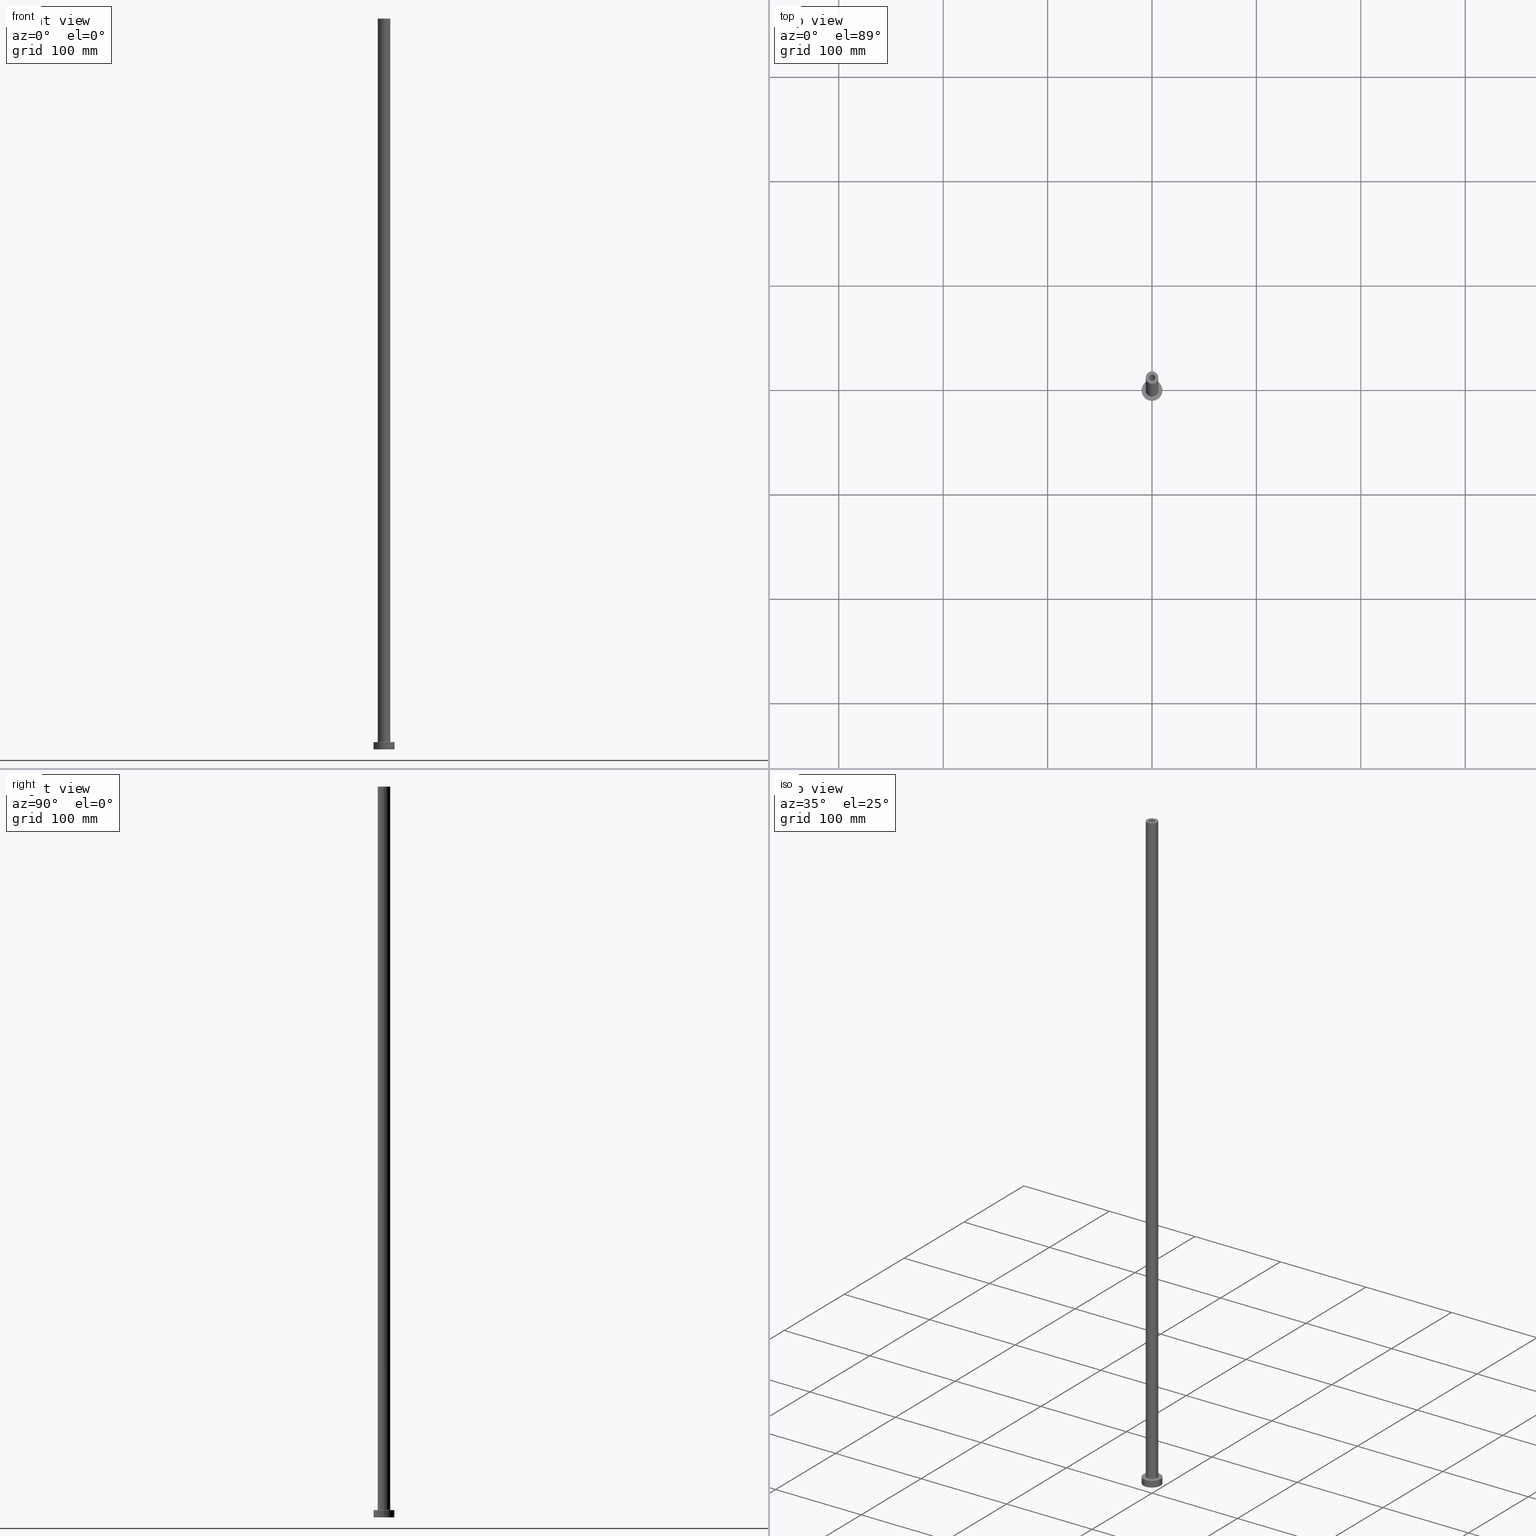
[diagram: canonical four-view strip — front | top / right | iso, engineering-drawing reading convention]
A machine part, canonical four-view strip (front | top / right | iso — engineering-drawing reading convention). The complete STEP part file that produces these views, byte-faithful:
ISO-10303-21;
HEADER;
FILE_DESCRIPTION (( 'STEP AP203' ),
    '1' );
FILE_NAME ('e46b.STEP',
    '2023-02-13T14:59:01',
    ( '' ),
    ( '' ),
    'SwSTEP 2.0',
    'SolidWorks 2019',
    '' );
FILE_SCHEMA (( 'CONFIG_CONTROL_DESIGN' ));
ENDSEC;

DATA;
#1 = CIRCLE ( 'NONE', #258, 3.000000000000000444 ) ;
#2 = DIRECTION ( 'NONE',  ( 0.000000000000000000, 0.000000000000000000, -1.000000000000000000 ) ) ;
#3 = MANIFOLD_SOLID_BREP ( 'Odebrat vysunut�m4', #417 ) ;
#4 = LINE ( 'NONE', #284, #77 ) ;
#5 = PERSON_AND_ORGANIZATION_ROLE ( 'design_supplier' ) ;
#6 = DIRECTION ( 'NONE',  ( -0.000000000000000000, -0.000000000000000000, -1.000000000000000000 ) ) ;
#7 = AXIS2_PLACEMENT_3D ( 'NONE', #261, #333, #441 ) ;
#8 = DIRECTION ( 'NONE',  ( 1.000000000000000000, 0.000000000000000000, 0.000000000000000000 ) ) ;
#9 = SHAPE_DEFINITION_REPRESENTATION ( #275, #315 ) ;
#10 = DIRECTION ( 'NONE',  ( -0.000000000000000000, -0.000000000000000000, -1.000000000000000000 ) ) ;
#11 = DIRECTION ( 'NONE',  ( -0.000000000000000000, -0.000000000000000000, -1.000000000000000000 ) ) ;
#12 = CYLINDRICAL_SURFACE ( 'NONE', #214, 6.000000000000000888 ) ;
#13 = APPROVAL ( #420, 'NEUR�EN�' ) ;
#14 = PRODUCT_DEFINITION ( 'NEZN�M�', '', #85, #193 ) ;
#15 = CARTESIAN_POINT ( 'NONE',  ( -3.150000000000000355, 0.000000000000000000, 0.000000000000000000 ) ) ;
#16 = DIRECTION ( 'NONE',  ( 0.000000000000000000, 0.000000000000000000, 1.000000000000000000 ) ) ;
#17 = EDGE_LOOP ( 'NONE', ( #151, #344 ) ) ;
#18 = AXIS2_PLACEMENT_3D ( 'NONE', #290, #42, #217 ) ;
#19 = DIRECTION ( 'NONE',  ( -1.000000000000000000, 0.000000000000000000, 0.000000000000000000 ) ) ;
#20 = ORIENTED_EDGE ( 'NONE', *, *, #47, .F. ) ;
#21 = AXIS2_PLACEMENT_3D ( 'NONE', #329, #216, #178 ) ;
#22 = DIRECTION ( 'NONE',  ( -0.000000000000000000, -0.000000000000000000, -1.000000000000000000 ) ) ;
#23 = CC_DESIGN_DATE_AND_TIME_ASSIGNMENT ( #392, #359, ( #454 ) ) ;
#24 = FACE_BOUND ( 'NONE', #211, .T. ) ;
#25 = ADVANCED_FACE ( 'NONE', ( #130 ), #163, .F. ) ;
#26 = PERSON_AND_ORGANIZATION ( #41, #266 ) ;
#27 = CIRCLE ( 'NONE', #431, 3.150000000000000355 ) ;
#28 = DIRECTION ( 'NONE',  ( 0.000000000000000000, 0.000000000000000000, 1.000000000000000000 ) ) ;
#29 = CIRCLE ( 'NONE', #328, 3.150000000000000355 ) ;
#30 = EDGE_CURVE ( 'NONE', #407, #35, #395, .T. ) ;
#31 = APPROVAL_ROLE ( '' ) ;
#32 = CARTESIAN_POINT ( 'NONE',  ( 3.000000000000000444, 3.673940397442060361E-16, 654.9999999999998863 ) ) ;
#33 = DIRECTION ( 'NONE',  ( 1.000000000000000000, 0.000000000000000000, -0.000000000000000000 ) ) ;
#34 = EDGE_CURVE ( 'NONE', #97, #308, #186, .T. ) ;
#35 = VERTEX_POINT ( 'NONE', #387 ) ;
#36 = ORIENTED_EDGE ( 'NONE', *, *, #115, .T. ) ;
#37 = AXIS2_PLACEMENT_3D ( 'NONE', #371, #121, #408 ) ;
#38 = DIRECTION ( 'NONE',  ( -1.000000000000000000, 0.000000000000000000, 0.000000000000000000 ) ) ;
#39 = APPROVAL_ROLE ( '' ) ;
#40 = DIRECTION ( 'NONE',  ( 1.000000000000000000, 0.000000000000000000, 0.000000000000000000 ) ) ;
#41 = PERSON ( 'NEUR�EN�', 'NEUR�EN�', 'NEUR�EN�', ('NEUR�EN�'), ('NEUR�EN�'), ('NEUR�EN�') ) ;
#42 = DIRECTION ( 'NONE',  ( 0.000000000000000000, 0.000000000000000000, 1.000000000000000000 ) ) ;
#43 = DIRECTION ( 'NONE',  ( -1.000000000000000000, 0.000000000000000000, 0.000000000000000000 ) ) ;
#44 = CARTESIAN_POINT ( 'NONE',  ( 0.000000000000000000, 0.000000000000000000, 7.000000000000000000 ) ) ;
#45 = LINE ( 'NONE', #184, #51 ) ;
#46 = ORIENTED_EDGE ( 'NONE', *, *, #241, .F. ) ;
#47 = EDGE_CURVE ( 'NONE', #372, #231, #27, .T. ) ;
#48 = ADVANCED_FACE ( 'NONE', ( #24, #133 ), #99, .T. ) ;
#49 = LINE ( 'NONE', #90, #234 ) ;
#50 = ORIENTED_EDGE ( 'NONE', *, *, #349, .F. ) ;
#51 = VECTOR ( 'NONE', #157, 1000.000000000000000 ) ;
#52 = DIRECTION ( 'NONE',  ( -1.000000000000000000, 1.224646799147351482E-16, 0.000000000000000000 ) ) ;
#53 = VERTEX_POINT ( 'NONE', #350 ) ;
#54 = CARTESIAN_POINT ( 'NONE',  ( -6.500000000000000888, 7.960204194457796463E-16, 6.999999999999975131 ) ) ;
#55 = EDGE_LOOP ( 'NONE', ( #20, #50 ) ) ;
#56 = VECTOR ( 'NONE', #71, 1000.000000000000000 ) ;
#57 = LINE ( 'NONE', #66, #453 ) ;
#58 = EDGE_LOOP ( 'NONE', ( #171, #135 ) ) ;
#59 = DIRECTION ( 'NONE',  ( -0.000000000000000000, -0.000000000000000000, -1.000000000000000000 ) ) ;
#60 = CARTESIAN_POINT ( 'NONE',  ( 0.000000000000000000, 0.000000000000000000, 654.9999999999998863 ) ) ;
#61 = APPROVAL_DATE_TIME ( #458, #13 ) ;
#62 = VERTEX_POINT ( 'NONE', #32 ) ;
#63 = PERSON_AND_ORGANIZATION ( #41, #266 ) ;
#64 = DIRECTION ( 'NONE',  ( 0.000000000000000000, 0.000000000000000000, 1.000000000000000000 ) ) ;
#65 = TOROIDAL_SURFACE ( 'NONE', #7, 6.500000000000000888, 0.5000000000000000000 ) ;
#66 = CARTESIAN_POINT ( 'NONE',  ( 3.000000000000000444, 3.673940397442060361E-16, 700.0000000000000000 ) ) ;
#67 = DIRECTION ( 'NONE',  ( 1.000000000000000000, 0.000000000000000000, 0.000000000000000000 ) ) ;
#68 = ORIENTED_EDGE ( 'NONE', *, *, #440, .T. ) ;
#69 = EDGE_CURVE ( 'NONE', #195, #262, #346, .T. ) ;
#70 = CALENDAR_DATE ( 2023, 13, 2 ) ;
#71 = DIRECTION ( 'NONE',  ( -0.000000000000000000, -0.000000000000000000, -1.000000000000000000 ) ) ;
#72 = CARTESIAN_POINT ( 'NONE',  ( 6.500000000000000888, 0.000000000000000000, 6.999999999999975131 ) ) ;
#73 = SECURITY_CLASSIFICATION_LEVEL ( 'unclassified' ) ;
#74 = CARTESIAN_POINT ( 'NONE',  ( 0.000000000000000000, 0.000000000000000000, 0.000000000000000000 ) ) ;
#75 = EDGE_CURVE ( 'NONE', #238, #449, #325, .T. ) ;
#76 = CARTESIAN_POINT ( 'NONE',  ( 0.000000000000000000, 0.000000000000000000, 663.9095454429503889 ) ) ;
#77 = VECTOR ( 'NONE', #2, 1000.000000000000000 ) ;
#78 = DIRECTION ( 'NONE',  ( 0.000000000000000000, 0.000000000000000000, -1.000000000000000000 ) ) ;
#79 = DIRECTION ( 'NONE',  ( 0.000000000000000000, 0.000000000000000000, -1.000000000000000000 ) ) ;
#80 = ORIENTED_EDGE ( 'NONE', *, *, #411, .F. ) ;
#81 = PLANE ( 'NONE',  #138 ) ;
#82 = CC_DESIGN_PERSON_AND_ORGANIZATION_ASSIGNMENT ( #105, #291, ( #85 ) ) ;
#83 = EDGE_LOOP ( 'NONE', ( #296, #301, #36, #369 ) ) ;
#84 = FACE_BOUND ( 'NONE', #17, .T. ) ;
#85 = PRODUCT_DEFINITION_FORMATION_WITH_SPECIFIED_SOURCE ( 'LIBOVOLN�', '', #236, .NOT_KNOWN. ) ;
#86 = ORIENTED_EDGE ( 'NONE', *, *, #257, .F. ) ;
#87 = EDGE_CURVE ( 'NONE', #53, #62, #1, .T. ) ;
#88 = DIRECTION ( 'NONE',  ( 1.000000000000000000, 0.000000000000000000, 0.000000000000000000 ) ) ;
#89 = ORIENTED_EDGE ( 'NONE', *, *, #191, .F. ) ;
#90 = CARTESIAN_POINT ( 'NONE',  ( -10.00000000000000000, 0.000000000000000000, 7.000000000000000000 ) ) ;
#91 = ORIENTED_EDGE ( 'NONE', *, *, #166, .T. ) ;
#92 = EDGE_CURVE ( 'NONE', #202, #409, #101, .T. ) ;
#93 = PERSON_AND_ORGANIZATION_ROLE ( 'design_owner' ) ;
#94 = DIRECTION ( 'NONE',  ( 1.000000000000000000, 0.000000000000000000, 0.000000000000000000 ) ) ;
#95 = AXIS2_PLACEMENT_3D ( 'NONE', #335, #16, #299 ) ;
#96 = APPROVAL_ROLE ( '' ) ;
#97 = VERTEX_POINT ( 'NONE', #72 ) ;
#98 = PERSON_AND_ORGANIZATION ( #41, #266 ) ;
#99 = PLANE ( 'NONE',  #226 ) ;
#100 = PLANE ( 'NONE',  #321 ) ;
#101 = CIRCLE ( 'NONE', #18, 10.00000000000000000 ) ;
#102 = ORIENTED_EDGE ( 'NONE', *, *, #428, .T. ) ;
#103 = AXIS2_PLACEMENT_3D ( 'NONE', #304, #127, #338 ) ;
#104 = ORIENTED_EDGE ( 'NONE', *, *, #30, .T. ) ;
#105 = PERSON_AND_ORGANIZATION ( #41, #266 ) ;
#106 = CARTESIAN_POINT ( 'NONE',  ( -6.000000000000000888, 0.000000000000000000, 700.0000000000000000 ) ) ;
#107 = PERSON_AND_ORGANIZATION ( #41, #266 ) ;
#108 = DIRECTION ( 'NONE',  ( 0.000000000000000000, 0.000000000000000000, 1.000000000000000000 ) ) ;
#109 = LOCAL_TIME ( 15, 59, 1.000000000000000000, #237 ) ;
#110 = AXIS2_PLACEMENT_3D ( 'NONE', #208, #307, #345 ) ;
#111 = CC_DESIGN_APPROVAL ( #391, ( #454 ) ) ;
#112 = DIRECTION ( 'NONE',  ( 1.000000000000000000, 0.000000000000000000, 0.000000000000000000 ) ) ;
#113 = CARTESIAN_POINT ( 'NONE',  ( 0.000000000000000000, 0.000000000000000000, 7.000000000000000000 ) ) ;
#114 = DIRECTION ( 'NONE',  ( 0.000000000000000000, 0.000000000000000000, 1.000000000000000000 ) ) ;
#115 = EDGE_CURVE ( 'NONE', #238, #35, #326, .T. ) ;
#116 =( GEOMETRIC_REPRESENTATION_CONTEXT ( 3 ) GLOBAL_UNCERTAINTY_ASSIGNED_CONTEXT ( ( #198 ) ) GLOBAL_UNIT_ASSIGNED_CONTEXT ( ( #243, #136, #161 ) ) REPRESENTATION_CONTEXT ( 'NONE', 'WORKASPACE' ) );
#117 = CARTESIAN_POINT ( 'NONE',  ( -6.500000000000000888, 7.960204194457796463E-16, 7.499999999999951150 ) ) ;
#118 = ORIENTED_EDGE ( 'NONE', *, *, #450, .F. ) ;
#119 = EDGE_CURVE ( 'NONE', #122, #298, #379, .T. ) ;
#120 = CARTESIAN_POINT ( 'NONE',  ( -3.150000000000000355, 0.000000000000000000, 654.9999999999998863 ) ) ;
#121 = DIRECTION ( 'NONE',  ( -0.000000000000000000, -0.000000000000000000, -1.000000000000000000 ) ) ;
#122 = VERTEX_POINT ( 'NONE', #213 ) ;
#123 = AXIS2_PLACEMENT_3D ( 'NONE', #209, #108, #292 ) ;
#124 = CARTESIAN_POINT ( 'NONE',  ( 6.000000000000000888, 7.347880794884120722E-16, 7.499999999999951150 ) ) ;
#125 = CIRCLE ( 'NONE', #132, 3.000000000000000444 ) ;
#126 = ORIENTED_EDGE ( 'NONE', *, *, #414, .T. ) ;
#127 = DIRECTION ( 'NONE',  ( 0.000000000000000000, 0.000000000000000000, 1.000000000000000000 ) ) ;
#128 = ORIENTED_EDGE ( 'NONE', *, *, #242, .T. ) ;
#129 = ADVANCED_FACE ( 'NONE', ( #142 ), #323, .F. ) ;
#130 = FACE_OUTER_BOUND ( 'NONE', #310, .T. ) ;
#131 = ORIENTED_EDGE ( 'NONE', *, *, #414, .F. ) ;
#132 = AXIS2_PLACEMENT_3D ( 'NONE', #324, #259, #8 ) ;
#133 = FACE_OUTER_BOUND ( 'NONE', #385, .T. ) ;
#134 = DIRECTION ( 'NONE',  ( 1.000000000000000000, 0.000000000000000000, 0.000000000000000000 ) ) ;
#135 = ORIENTED_EDGE ( 'NONE', *, *, #69, .F. ) ;
#136 =( NAMED_UNIT ( * ) PLANE_ANGLE_UNIT ( ) SI_UNIT ( $, .RADIAN. ) );
#137 = EDGE_LOOP ( 'NONE', ( #390, #339, #270, #126 ) ) ;
#138 = AXIS2_PLACEMENT_3D ( 'NONE', #415, #297, #295 ) ;
#139 = CC_DESIGN_SECURITY_CLASSIFICATION ( #454, ( #85 ) ) ;
#140 = CALENDAR_DATE ( 2023, 13, 2 ) ;
#141 = CARTESIAN_POINT ( 'NONE',  ( 0.000000000000000000, 0.000000000000000000, 654.9999999999998863 ) ) ;
#142 = FACE_OUTER_BOUND ( 'NONE', #461, .T. ) ;
#143 = COORDINATED_UNIVERSAL_TIME_OFFSET ( 1, 0, .AHEAD. ) ;
#144 = CARTESIAN_POINT ( 'NONE',  ( 0.000000000000000000, 0.000000000000000000, 0.000000000000000000 ) ) ;
#145 = CIRCLE ( 'NONE', #410, 3.150000000000000355 ) ;
#146 = CARTESIAN_POINT ( 'NONE',  ( 0.000000000000000000, 0.000000000000000000, 7.000000000000000000 ) ) ;
#147 = CYLINDRICAL_SURFACE ( 'NONE', #357, 3.000000000000000444 ) ;
#148 = FACE_OUTER_BOUND ( 'NONE', #83, .T. ) ;
#149 = AXIS2_PLACEMENT_3D ( 'NONE', #192, #79, #19 ) ;
#150 = CYLINDRICAL_SURFACE ( 'NONE', #149, 3.150000000000000355 ) ;
#151 = ORIENTED_EDGE ( 'NONE', *, *, #87, .T. ) ;
#152 = CARTESIAN_POINT ( 'NONE',  ( 3.150000000000000355, 3.857637417314163182E-16, 0.000000000000000000 ) ) ;
#153 = EDGE_LOOP ( 'NONE', ( #89, #68, #104, #194 ) ) ;
#154 = ADVANCED_FACE ( 'NONE', ( #429 ), #147, .F. ) ;
#155 = CARTESIAN_POINT ( 'NONE',  ( 0.000000000000000000, 0.000000000000000000, 7.499999999999951150 ) ) ;
#156 = EDGE_LOOP ( 'NONE', ( #451, #355, #452, #118 ) ) ;
#157 = DIRECTION ( 'NONE',  ( -0.000000000000000000, -0.000000000000000000, -1.000000000000000000 ) ) ;
#158 = AXIS2_PLACEMENT_3D ( 'NONE', #117, #443, #52 ) ;
#159 = DIRECTION ( 'NONE',  ( 1.000000000000000000, 0.000000000000000000, 0.000000000000000000 ) ) ;
#160 = EDGE_LOOP ( 'NONE', ( #305, #416, #162, #444 ) ) ;
#161 =( NAMED_UNIT ( * ) SI_UNIT ( $, .STERADIAN. ) SOLID_ANGLE_UNIT ( ) );
#162 = ORIENTED_EDGE ( 'NONE', *, *, #34, .F. ) ;
#163 = TOROIDAL_SURFACE ( 'NONE', #401, 6.500000000000000888, 0.5000000000000000000 ) ;
#164 = DIRECTION ( 'NONE',  ( 0.000000000000000000, 0.000000000000000000, 1.000000000000000000 ) ) ;
#165 = DIRECTION ( 'NONE',  ( -0.000000000000000000, -0.000000000000000000, -1.000000000000000000 ) ) ;
#166 = EDGE_CURVE ( 'NONE', #262, #195, #125, .T. ) ;
#167 = DIRECTION ( 'NONE',  ( 0.000000000000000000, 0.000000000000000000, -1.000000000000000000 ) ) ;
#168 = CARTESIAN_POINT ( 'NONE',  ( 0.000000000000000000, 0.000000000000000000, 700.0000000000000000 ) ) ;
#169 = ADVANCED_FACE ( 'NONE', ( #182 ), #175, .T. ) ;
#170 = ADVANCED_FACE ( 'NONE', ( #430 ), #218, .F. ) ;
#171 = ORIENTED_EDGE ( 'NONE', *, *, #166, .F. ) ;
#172 = ORIENTED_EDGE ( 'NONE', *, *, #87, .F. ) ;
#173 = AXIS2_PLACEMENT_3D ( 'NONE', #113, #402, #40 ) ;
#174 = AXIS2_PLACEMENT_3D ( 'NONE', #264, #269, #412 ) ;
#175 = CYLINDRICAL_SURFACE ( 'NONE', #397, 10.00000000000000000 ) ;
#176 = ADVANCED_FACE ( 'NONE', ( #367 ), #433, .T. ) ;
#177 = APPROVAL_DATE_TIME ( #212, #391 ) ;
#178 = DIRECTION ( 'NONE',  ( -1.000000000000000000, 0.000000000000000000, 0.000000000000000000 ) ) ;
#179 = CARTESIAN_POINT ( 'NONE',  ( 0.000000000000000000, 0.000000000000000000, 654.9999999999998863 ) ) ;
#180 = CIRCLE ( 'NONE', #312, 6.000000000000000888 ) ;
#181 = LOCAL_TIME ( 15, 59, 1.000000000000000000, #143 ) ;
#182 = FACE_OUTER_BOUND ( 'NONE', #383, .T. ) ;
#183 = DIRECTION ( 'NONE',  ( -0.000000000000000000, -0.000000000000000000, -1.000000000000000000 ) ) ;
#184 = CARTESIAN_POINT ( 'NONE',  ( 10.00000000000000000, 1.224646799147353256E-15, 7.000000000000000000 ) ) ;
#185 = ORIENTED_EDGE ( 'NONE', *, *, #69, .T. ) ;
#186 = CIRCLE ( 'NONE', #300, 6.500000000000000888 ) ;
#187 = AXIS2_PLACEMENT_3D ( 'NONE', #141, #286, #396 ) ;
#188 = EDGE_LOOP ( 'NONE', ( #91, #102, #172, #268 ) ) ;
#189 = EDGE_CURVE ( 'NONE', #262, #53, #4, .T. ) ;
#190 = LINE ( 'NONE', #404, #403 ) ;
#191 = EDGE_CURVE ( 'NONE', #449, #238, #180, .T. ) ;
#192 = CARTESIAN_POINT ( 'NONE',  ( 0.000000000000000000, 0.000000000000000000, 663.9095454429503889 ) ) ;
#193 = DESIGN_CONTEXT ( 'detailed design', #260, 'design' ) ;
#194 = ORIENTED_EDGE ( 'NONE', *, *, #115, .F. ) ;
#195 = VERTEX_POINT ( 'NONE', #256 ) ;
#196 = LOCAL_TIME ( 15, 59, 1.000000000000000000, #361 ) ;
#197 = DIRECTION ( 'NONE',  ( 0.000000000000000000, 0.000000000000000000, -1.000000000000000000 ) ) ;
#198 = UNCERTAINTY_MEASURE_WITH_UNIT (LENGTH_MEASURE( 1.000000000000000082E-05 ), #243, 'distance_accuracy_value', 'NONE');
#199 = DIRECTION ( 'NONE',  ( 1.000000000000000000, 0.000000000000000000, 0.000000000000000000 ) ) ;
#200 = CC_DESIGN_DATE_AND_TIME_ASSIGNMENT ( #455, #276, ( #14 ) ) ;
#201 = COORDINATED_UNIVERSAL_TIME_OFFSET ( 1, 0, .AHEAD. ) ;
#202 = VERTEX_POINT ( 'NONE', #320 ) ;
#203 = AXIS2_PLACEMENT_3D ( 'NONE', #168, #279, #67 ) ;
#204 = EDGE_CURVE ( 'NONE', #62, #53, #245, .T. ) ;
#205 = CARTESIAN_POINT ( 'NONE',  ( -3.150000000000000355, 0.000000000000000000, 663.9095454429503889 ) ) ;
#206 = DIRECTION ( 'NONE',  ( 1.000000000000000000, 0.000000000000000000, -0.000000000000000000 ) ) ;
#207 = CIRCLE ( 'NONE', #282, 10.00000000000000000 ) ;
#208 = CARTESIAN_POINT ( 'NONE',  ( 0.000000000000000000, 0.000000000000000000, 0.000000000000000000 ) ) ;
#209 = CARTESIAN_POINT ( 'NONE',  ( 0.000000000000000000, 0.000000000000000000, 700.0000000000000000 ) ) ;
#210 = CALENDAR_DATE ( 2023, 13, 2 ) ;
#211 = EDGE_LOOP ( 'NONE', ( #222, #427 ) ) ;
#212 = DATE_AND_TIME ( #70, #381 ) ;
#213 = CARTESIAN_POINT ( 'NONE',  ( 10.00000000000000000, 1.224646799147353256E-15, 7.000000000000000000 ) ) ;
#214 = AXIS2_PLACEMENT_3D ( 'NONE', #406, #445, #293 ) ;
#215 = PERSON_AND_ORGANIZATION ( #41, #266 ) ;
#216 = DIRECTION ( 'NONE',  ( 0.000000000000000000, 0.000000000000000000, -1.000000000000000000 ) ) ;
#217 = DIRECTION ( 'NONE',  ( 1.000000000000000000, 0.000000000000000000, 0.000000000000000000 ) ) ;
#218 = CYLINDRICAL_SURFACE ( 'NONE', #348, 3.150000000000000355 ) ;
#219 = CC_DESIGN_PERSON_AND_ORGANIZATION_ASSIGNMENT ( #215, #5, ( #85 ) ) ;
#220 = DIRECTION ( 'NONE',  ( 1.000000000000000000, 0.000000000000000000, 0.000000000000000000 ) ) ;
#221 = DIRECTION ( 'NONE',  ( 0.000000000000000000, 0.000000000000000000, -1.000000000000000000 ) ) ;
#222 = ORIENTED_EDGE ( 'NONE', *, *, #34, .T. ) ;
#223 = APPLICATION_CONTEXT ( 'configuration controlled 3d designs of mechanical parts and assemblies' ) ;
#224 = CYLINDRICAL_SURFACE ( 'NONE', #37, 6.000000000000000888 ) ;
#225 = EDGE_LOOP ( 'NONE', ( #413, #353 ) ) ;
#226 = AXIS2_PLACEMENT_3D ( 'NONE', #277, #64, #206 ) ;
#227 = LOCAL_TIME ( 15, 59, 1.000000000000000000, #201 ) ;
#228 = FACE_OUTER_BOUND ( 'NONE', #55, .T. ) ;
#229 = ORIENTED_EDGE ( 'NONE', *, *, #119, .T. ) ;
#230 = CARTESIAN_POINT ( 'NONE',  ( 0.000000000000000000, 0.000000000000000000, 7.000000000000000000 ) ) ;
#231 = VERTEX_POINT ( 'NONE', #283 ) ;
#232 = FACE_OUTER_BOUND ( 'NONE', #225, .T. ) ;
#233 = APPLICATION_PROTOCOL_DEFINITION ( 'international standard', 'config_control_design', 1994, #260 ) ;
#234 = VECTOR ( 'NONE', #183, 1000.000000000000000 ) ;
#235 = ORIENTED_EDGE ( 'NONE', *, *, #287, .T. ) ;
#236 = PRODUCT ( 'e46b', 'e46b', '', ( #239 ) ) ;
#237 = COORDINATED_UNIVERSAL_TIME_OFFSET ( 1, 0, .AHEAD. ) ;
#238 = VERTEX_POINT ( 'NONE', #106 ) ;
#239 = MECHANICAL_CONTEXT ( 'NONE', #223, 'mechanical' ) ;
#240 = DIRECTION ( 'NONE',  ( 1.000000000000000000, 0.000000000000000000, 0.000000000000000000 ) ) ;
#241 = EDGE_CURVE ( 'NONE', #298, #122, #207, .T. ) ;
#242 = EDGE_CURVE ( 'NONE', #409, #202, #366, .T. ) ;
#243 =( LENGTH_UNIT ( ) NAMED_UNIT ( * ) SI_UNIT ( .MILLI., .METRE. ) );
#244 = DIRECTION ( 'NONE',  ( 0.000000000000000000, 0.000000000000000000, 1.000000000000000000 ) ) ;
#245 = CIRCLE ( 'NONE', #187, 3.000000000000000444 ) ;
#246 = APPROVAL_PERSON_ORGANIZATION ( #98, #306, #31 ) ;
#247 = DIRECTION ( 'NONE',  ( -0.000000000000000000, -0.000000000000000000, -1.000000000000000000 ) ) ;
#248 = ORIENTED_EDGE ( 'NONE', *, *, #354, .T. ) ;
#249 = DATE_AND_TIME ( #140, #181 ) ;
#250 = CARTESIAN_POINT ( 'NONE',  ( 0.000000000000000000, 0.000000000000000000, 7.000000000000000000 ) ) ;
#251 = APPROVAL_DATE_TIME ( #249, #306 ) ;
#252 = DIRECTION ( 'NONE',  ( -1.000000000000000000, 0.000000000000000000, 0.000000000000000000 ) ) ;
#253 = VECTOR ( 'NONE', #22, 1000.000000000000000 ) ;
#254 = APPROVAL_PERSON_ORGANIZATION ( #107, #391, #39 ) ;
#255 = DIRECTION ( 'NONE',  ( 0.000000000000000000, 0.000000000000000000, 1.000000000000000000 ) ) ;
#256 = CARTESIAN_POINT ( 'NONE',  ( 3.000000000000000444, 3.673940397442060361E-16, 700.0000000000000000 ) ) ;
#257 = EDGE_CURVE ( 'NONE', #336, #314, #145, .T. ) ;
#258 = AXIS2_PLACEMENT_3D ( 'NONE', #179, #364, #400 ) ;
#259 = DIRECTION ( 'NONE',  ( 0.000000000000000000, 0.000000000000000000, 1.000000000000000000 ) ) ;
#260 = APPLICATION_CONTEXT ( 'configuration controlled 3d designs of mechanical parts and assemblies' ) ;
#261 = CARTESIAN_POINT ( 'NONE',  ( 0.000000000000000000, 0.000000000000000000, 7.499999999999951150 ) ) ;
#262 = VERTEX_POINT ( 'NONE', #376 ) ;
#263 = FACE_OUTER_BOUND ( 'NONE', #153, .T. ) ;
#264 = CARTESIAN_POINT ( 'NONE',  ( 6.500000000000000888, 0.000000000000000000, 7.499999999999951150 ) ) ;
#265 = ORIENTED_EDGE ( 'NONE', *, *, #30, .F. ) ;
#266 = ORGANIZATION ( 'NEUR�EN�', 'NEUR�EN�', '' ) ;
#267 = CARTESIAN_POINT ( 'NONE',  ( -10.00000000000000000, 0.000000000000000000, 0.000000000000000000 ) ) ;
#268 = ORIENTED_EDGE ( 'NONE', *, *, #189, .F. ) ;
#269 = DIRECTION ( 'NONE',  ( 0.000000000000000000, -1.000000000000000000, 0.000000000000000000 ) ) ;
#270 = ORIENTED_EDGE ( 'NONE', *, *, #450, .T. ) ;
#271 = PERSON_AND_ORGANIZATION ( #41, #266 ) ;
#272 = CARTESIAN_POINT ( 'NONE',  ( 0.000000000000000000, 0.000000000000000000, 7.499999999999951150 ) ) ;
#273 = AXIS2_PLACEMENT_3D ( 'NONE', #230, #247, #159 ) ;
#274 = ORIENTED_EDGE ( 'NONE', *, *, #75, .T. ) ;
#275 = PRODUCT_DEFINITION_SHAPE ( 'NONE', 'NONE',  #14 ) ;
#276 = DATE_TIME_ROLE ( 'creation_date' ) ;
#277 = CARTESIAN_POINT ( 'NONE',  ( 0.000000000000000000, 0.000000000000000000, 7.000000000000000000 ) ) ;
#278 = FACE_BOUND ( 'NONE', #58, .T. ) ;
#279 = DIRECTION ( 'NONE',  ( 0.000000000000000000, 0.000000000000000000, 1.000000000000000000 ) ) ;
#280 = EDGE_CURVE ( 'NONE', #35, #407, #426, .T. ) ;
#281 = EDGE_LOOP ( 'NONE', ( #274, #424 ) ) ;
#282 = AXIS2_PLACEMENT_3D ( 'NONE', #250, #394, #112 ) ;
#283 = CARTESIAN_POINT ( 'NONE',  ( 3.150000000000000355, 3.857637417314163182E-16, 654.9999999999998863 ) ) ;
#284 = CARTESIAN_POINT ( 'NONE',  ( -3.000000000000000444, 0.000000000000000000, 700.0000000000000000 ) ) ;
#285 = AXIS2_PLACEMENT_3D ( 'NONE', #272, #28, #199 ) ;
#286 = DIRECTION ( 'NONE',  ( 0.000000000000000000, 0.000000000000000000, 1.000000000000000000 ) ) ;
#287 = EDGE_CURVE ( 'NONE', #407, #97, #380, .T. ) ;
#288 = CIRCLE ( 'NONE', #273, 6.500000000000000888 ) ;
#289 = PERSON_AND_ORGANIZATION_ROLE ( 'classification_officer' ) ;
#290 = CARTESIAN_POINT ( 'NONE',  ( 0.000000000000000000, 0.000000000000000000, 0.000000000000000000 ) ) ;
#291 = PERSON_AND_ORGANIZATION_ROLE ( 'creator' ) ;
#292 = DIRECTION ( 'NONE',  ( 1.000000000000000000, 0.000000000000000000, 0.000000000000000000 ) ) ;
#293 = DIRECTION ( 'NONE',  ( -1.000000000000000000, 0.000000000000000000, 0.000000000000000000 ) ) ;
#294 = AXIS2_PLACEMENT_3D ( 'NONE', #155, #448, #88 ) ;
#295 = DIRECTION ( 'NONE',  ( 1.000000000000000000, 0.000000000000000000, -0.000000000000000000 ) ) ;
#296 = ORIENTED_EDGE ( 'NONE', *, *, #440, .F. ) ;
#297 = DIRECTION ( 'NONE',  ( 0.000000000000000000, 0.000000000000000000, 1.000000000000000000 ) ) ;
#298 = VERTEX_POINT ( 'NONE', #330 ) ;
#299 = DIRECTION ( 'NONE',  ( 1.000000000000000000, 0.000000000000000000, -0.000000000000000000 ) ) ;
#300 = AXIS2_PLACEMENT_3D ( 'NONE', #459, #165, #456 ) ;
#301 = ORIENTED_EDGE ( 'NONE', *, *, #75, .F. ) ;
#302 = AXIS2_PLACEMENT_3D ( 'NONE', #44, #6, #435 ) ;
#303 = CC_DESIGN_APPROVAL ( #306, ( #85 ) ) ;
#304 = CARTESIAN_POINT ( 'NONE',  ( 0.000000000000000000, 0.000000000000000000, 654.9999999999998863 ) ) ;
#305 = ORIENTED_EDGE ( 'NONE', *, *, #280, .F. ) ;
#306 = APPROVAL ( #347, 'NEUR�EN�' ) ;
#307 = DIRECTION ( 'NONE',  ( 0.000000000000000000, 0.000000000000000000, 1.000000000000000000 ) ) ;
#308 = VERTEX_POINT ( 'NONE', #54 ) ;
#309 = LINE ( 'NONE', #316, #253 ) ;
#310 = EDGE_LOOP ( 'NONE', ( #317, #265, #235, #80 ) ) ;
#311 = CALENDAR_DATE ( 2023, 13, 2 ) ;
#312 = AXIS2_PLACEMENT_3D ( 'NONE', #437, #114, #220 ) ;
#313 = VECTOR ( 'NONE', #197, 1000.000000000000000 ) ;
#314 = VERTEX_POINT ( 'NONE', #15 ) ;
#315 = ADVANCED_BREP_SHAPE_REPRESENTATION ( 'e46b', ( #3, #110 ), #116 ) ;
#316 = CARTESIAN_POINT ( 'NONE',  ( 6.000000000000000888, 7.347880794884120722E-16, 700.0000000000000000 ) ) ;
#317 = ORIENTED_EDGE ( 'NONE', *, *, #374, .F. ) ;
#318 = FACE_OUTER_BOUND ( 'NONE', #281, .T. ) ;
#319 = EDGE_LOOP ( 'NONE', ( #131, #86 ) ) ;
#320 = CARTESIAN_POINT ( 'NONE',  ( 10.00000000000000000, 1.224646799147353256E-15, 0.000000000000000000 ) ) ;
#321 = AXIS2_PLACEMENT_3D ( 'NONE', #343, #164, #33 ) ;
#322 = PERSON_AND_ORGANIZATION ( #41, #266 ) ;
#323 = CYLINDRICAL_SURFACE ( 'NONE', #21, 3.000000000000000444 ) ;
#324 = CARTESIAN_POINT ( 'NONE',  ( 0.000000000000000000, 0.000000000000000000, 700.0000000000000000 ) ) ;
#325 = CIRCLE ( 'NONE', #123, 6.000000000000000888 ) ;
#326 = LINE ( 'NONE', #360, #56 ) ;
#327 = ADVANCED_FACE ( 'NONE', ( #368 ), #150, .F. ) ;
#328 = AXIS2_PLACEMENT_3D ( 'NONE', #460, #59, #134 ) ;
#329 = CARTESIAN_POINT ( 'NONE',  ( 0.000000000000000000, 0.000000000000000000, 700.0000000000000000 ) ) ;
#330 = CARTESIAN_POINT ( 'NONE',  ( -10.00000000000000000, 0.000000000000000000, 7.000000000000000000 ) ) ;
#331 = FACE_BOUND ( 'NONE', #319, .T. ) ;
#332 = ORIENTED_EDGE ( 'NONE', *, *, #354, .F. ) ;
#333 = DIRECTION ( 'NONE',  ( 0.000000000000000000, 0.000000000000000000, 1.000000000000000000 ) ) ;
#334 = EDGE_LOOP ( 'NONE', ( #375, #46, #248, #128 ) ) ;
#335 = CARTESIAN_POINT ( 'NONE',  ( 0.000000000000000000, 0.000000000000000000, 654.9999999999998863 ) ) ;
#336 = VERTEX_POINT ( 'NONE', #152 ) ;
#337 = EDGE_CURVE ( 'NONE', #122, #202, #45, .T. ) ;
#338 = DIRECTION ( 'NONE',  ( 1.000000000000000000, 0.000000000000000000, 0.000000000000000000 ) ) ;
#339 = ORIENTED_EDGE ( 'NONE', *, *, #349, .T. ) ;
#340 = CIRCLE ( 'NONE', #158, 0.5000000000000004441 ) ;
#341 = ORIENTED_EDGE ( 'NONE', *, *, #428, .F. ) ;
#342 = CC_DESIGN_PERSON_AND_ORGANIZATION_ASSIGNMENT ( #271, #93, ( #236 ) ) ;
#343 = CARTESIAN_POINT ( 'NONE',  ( 0.000000000000000000, 0.000000000000000000, 700.0000000000000000 ) ) ;
#344 = ORIENTED_EDGE ( 'NONE', *, *, #204, .T. ) ;
#345 = DIRECTION ( 'NONE',  ( 1.000000000000000000, 0.000000000000000000, 0.000000000000000000 ) ) ;
#346 = CIRCLE ( 'NONE', #203, 3.000000000000000444 ) ;
#347 = APPROVAL_STATUS ( 'not_yet_approved' ) ;
#348 = AXIS2_PLACEMENT_3D ( 'NONE', #76, #78, #252 ) ;
#349 = EDGE_CURVE ( 'NONE', #231, #372, #447, .T. ) ;
#350 = CARTESIAN_POINT ( 'NONE',  ( -3.000000000000000444, 0.000000000000000000, 654.9999999999998863 ) ) ;
#351 = ADVANCED_FACE ( 'NONE', ( #331, #232 ), #81, .F. ) ;
#352 = APPLICATION_PROTOCOL_DEFINITION ( 'international standard', 'config_control_design', 1994, #223 ) ;
#353 = ORIENTED_EDGE ( 'NONE', *, *, #92, .F. ) ;
#354 = EDGE_CURVE ( 'NONE', #298, #409, #49, .T. ) ;
#355 = ORIENTED_EDGE ( 'NONE', *, *, #388, .T. ) ;
#356 = CARTESIAN_POINT ( 'NONE',  ( 0.000000000000000000, 0.000000000000000000, 700.0000000000000000 ) ) ;
#357 = AXIS2_PLACEMENT_3D ( 'NONE', #356, #362, #38 ) ;
#358 = CC_DESIGN_PERSON_AND_ORGANIZATION_ASSIGNMENT ( #322, #289, ( #454 ) ) ;
#359 = DATE_TIME_ROLE ( 'classification_date' ) ;
#360 = CARTESIAN_POINT ( 'NONE',  ( -6.000000000000000888, 0.000000000000000000, 700.0000000000000000 ) ) ;
#361 = COORDINATED_UNIVERSAL_TIME_OFFSET ( 1, 0, .AHEAD. ) ;
#362 = DIRECTION ( 'NONE',  ( 0.000000000000000000, 0.000000000000000000, -1.000000000000000000 ) ) ;
#363 = ADVANCED_FACE ( 'NONE', ( #148 ), #12, .T. ) ;
#364 = DIRECTION ( 'NONE',  ( 0.000000000000000000, 0.000000000000000000, 1.000000000000000000 ) ) ;
#365 = PRODUCT_RELATED_PRODUCT_CATEGORY ( 'detail', '', ( #236 ) ) ;
#366 = CIRCLE ( 'NONE', #419, 10.00000000000000000 ) ;
#367 = FACE_OUTER_BOUND ( 'NONE', #334, .T. ) ;
#368 = FACE_OUTER_BOUND ( 'NONE', #156, .T. ) ;
#369 = ORIENTED_EDGE ( 'NONE', *, *, #280, .T. ) ;
#370 = ADVANCED_FACE ( 'NONE', ( #438 ), #65, .F. ) ;
#371 = CARTESIAN_POINT ( 'NONE',  ( 0.000000000000000000, 0.000000000000000000, 700.0000000000000000 ) ) ;
#372 = VERTEX_POINT ( 'NONE', #120 ) ;
#373 = PLANE ( 'NONE',  #95 ) ;
#374 = EDGE_CURVE ( 'NONE', #35, #308, #340, .T. ) ;
#375 = ORIENTED_EDGE ( 'NONE', *, *, #337, .F. ) ;
#376 = CARTESIAN_POINT ( 'NONE',  ( -3.000000000000000444, 0.000000000000000000, 700.0000000000000000 ) ) ;
#377 = ORIENTED_EDGE ( 'NONE', *, *, #204, .F. ) ;
#378 = DIRECTION ( 'NONE',  ( 1.000000000000000000, 0.000000000000000000, 0.000000000000000000 ) ) ;
#379 = CIRCLE ( 'NONE', #173, 10.00000000000000000 ) ;
#380 = CIRCLE ( 'NONE', #174, 0.5000000000000004441 ) ;
#381 = LOCAL_TIME ( 15, 59, 1.000000000000000000, #434 ) ;
#382 = CARTESIAN_POINT ( 'NONE',  ( 6.000000000000000888, 7.347880794884120722E-16, 700.0000000000000000 ) ) ;
#383 = EDGE_LOOP ( 'NONE', ( #446, #405, #423, #332 ) ) ;
#384 = CALENDAR_DATE ( 2023, 13, 2 ) ;
#385 = EDGE_LOOP ( 'NONE', ( #421, #229 ) ) ;
#386 = DIRECTION ( 'NONE',  ( 0.000000000000000000, 0.000000000000000000, 1.000000000000000000 ) ) ;
#387 = CARTESIAN_POINT ( 'NONE',  ( -6.000000000000000888, 0.000000000000000000, 7.499999999999951150 ) ) ;
#388 = EDGE_CURVE ( 'NONE', #231, #336, #190, .T. ) ;
#389 = CC_DESIGN_PERSON_AND_ORGANIZATION_ASSIGNMENT ( #63, #422, ( #14 ) ) ;
#390 = ORIENTED_EDGE ( 'NONE', *, *, #388, .F. ) ;
#391 = APPROVAL ( #436, 'NEUR�EN�' ) ;
#392 = DATE_AND_TIME ( #210, #196 ) ;
#393 = ADVANCED_FACE ( 'NONE', ( #263 ), #224, .T. ) ;
#394 = DIRECTION ( 'NONE',  ( 0.000000000000000000, 0.000000000000000000, 1.000000000000000000 ) ) ;
#395 = CIRCLE ( 'NONE', #285, 6.000000000000000888 ) ;
#396 = DIRECTION ( 'NONE',  ( 1.000000000000000000, 0.000000000000000000, 0.000000000000000000 ) ) ;
#397 = AXIS2_PLACEMENT_3D ( 'NONE', #146, #10, #43 ) ;
#398 = ADVANCED_FACE ( 'NONE', ( #84, #228 ), #373, .F. ) ;
#399 = DIRECTION ( 'NONE',  ( 1.000000000000000000, 0.000000000000000000, 0.000000000000000000 ) ) ;
#400 = DIRECTION ( 'NONE',  ( 1.000000000000000000, 0.000000000000000000, 0.000000000000000000 ) ) ;
#401 = AXIS2_PLACEMENT_3D ( 'NONE', #418, #244, #240 ) ;
#402 = DIRECTION ( 'NONE',  ( 0.000000000000000000, 0.000000000000000000, 1.000000000000000000 ) ) ;
#403 = VECTOR ( 'NONE', #221, 1000.000000000000000 ) ;
#404 = CARTESIAN_POINT ( 'NONE',  ( 3.150000000000000355, 3.857637417314163182E-16, 663.9095454429503889 ) ) ;
#405 = ORIENTED_EDGE ( 'NONE', *, *, #337, .T. ) ;
#406 = CARTESIAN_POINT ( 'NONE',  ( 0.000000000000000000, 0.000000000000000000, 700.0000000000000000 ) ) ;
#407 = VERTEX_POINT ( 'NONE', #124 ) ;
#408 = DIRECTION ( 'NONE',  ( -1.000000000000000000, 0.000000000000000000, 0.000000000000000000 ) ) ;
#409 = VERTEX_POINT ( 'NONE', #267 ) ;
#410 = AXIS2_PLACEMENT_3D ( 'NONE', #74, #11, #378 ) ;
#411 = EDGE_CURVE ( 'NONE', #308, #97, #288, .T. ) ;
#412 = DIRECTION ( 'NONE',  ( 0.000000000000000000, 0.000000000000000000, -1.000000000000000000 ) ) ;
#413 = ORIENTED_EDGE ( 'NONE', *, *, #242, .F. ) ;
#414 = EDGE_CURVE ( 'NONE', #314, #336, #29, .T. ) ;
#415 = CARTESIAN_POINT ( 'NONE',  ( 0.000000000000000000, 0.000000000000000000, 0.000000000000000000 ) ) ;
#416 = ORIENTED_EDGE ( 'NONE', *, *, #374, .T. ) ;
#417 = CLOSED_SHELL ( 'NONE', ( #154, #327, #370, #393, #169, #176, #48, #351, #363, #457, #25, #170, #398, #129 ) ) ;
#418 = CARTESIAN_POINT ( 'NONE',  ( 0.000000000000000000, 0.000000000000000000, 7.499999999999951150 ) ) ;
#419 = AXIS2_PLACEMENT_3D ( 'NONE', #144, #255, #399 ) ;
#420 = APPROVAL_STATUS ( 'not_yet_approved' ) ;
#421 = ORIENTED_EDGE ( 'NONE', *, *, #241, .T. ) ;
#422 = PERSON_AND_ORGANIZATION_ROLE ( 'creator' ) ;
#423 = ORIENTED_EDGE ( 'NONE', *, *, #92, .T. ) ;
#424 = ORIENTED_EDGE ( 'NONE', *, *, #191, .T. ) ;
#425 = LINE ( 'NONE', #205, #313 ) ;
#426 = CIRCLE ( 'NONE', #294, 6.000000000000000888 ) ;
#427 = ORIENTED_EDGE ( 'NONE', *, *, #411, .T. ) ;
#428 = EDGE_CURVE ( 'NONE', #195, #62, #57, .T. ) ;
#429 = FACE_OUTER_BOUND ( 'NONE', #188, .T. ) ;
#430 = FACE_OUTER_BOUND ( 'NONE', #137, .T. ) ;
#431 = AXIS2_PLACEMENT_3D ( 'NONE', #60, #386, #94 ) ;
#432 = CC_DESIGN_APPROVAL ( #13, ( #14 ) ) ;
#433 = CYLINDRICAL_SURFACE ( 'NONE', #302, 10.00000000000000000 ) ;
#434 = COORDINATED_UNIVERSAL_TIME_OFFSET ( 1, 0, .AHEAD. ) ;
#435 = DIRECTION ( 'NONE',  ( -1.000000000000000000, 0.000000000000000000, 0.000000000000000000 ) ) ;
#436 = APPROVAL_STATUS ( 'not_yet_approved' ) ;
#437 = CARTESIAN_POINT ( 'NONE',  ( 0.000000000000000000, 0.000000000000000000, 700.0000000000000000 ) ) ;
#438 = FACE_OUTER_BOUND ( 'NONE', #160, .T. ) ;
#439 = APPROVAL_PERSON_ORGANIZATION ( #26, #13, #96 ) ;
#440 = EDGE_CURVE ( 'NONE', #449, #407, #309, .T. ) ;
#441 = DIRECTION ( 'NONE',  ( 1.000000000000000000, 0.000000000000000000, 0.000000000000000000 ) ) ;
#442 = ORIENTED_EDGE ( 'NONE', *, *, #189, .T. ) ;
#443 = DIRECTION ( 'NONE',  ( 1.224646799147353207E-16, 1.000000000000000000, -0.000000000000000000 ) ) ;
#444 = ORIENTED_EDGE ( 'NONE', *, *, #287, .F. ) ;
#445 = DIRECTION ( 'NONE',  ( -0.000000000000000000, -0.000000000000000000, -1.000000000000000000 ) ) ;
#446 = ORIENTED_EDGE ( 'NONE', *, *, #119, .F. ) ;
#447 = CIRCLE ( 'NONE', #103, 3.150000000000000355 ) ;
#448 = DIRECTION ( 'NONE',  ( 0.000000000000000000, 0.000000000000000000, 1.000000000000000000 ) ) ;
#449 = VERTEX_POINT ( 'NONE', #382 ) ;
#450 = EDGE_CURVE ( 'NONE', #372, #314, #425, .T. ) ;
#451 = ORIENTED_EDGE ( 'NONE', *, *, #47, .T. ) ;
#452 = ORIENTED_EDGE ( 'NONE', *, *, #257, .T. ) ;
#453 = VECTOR ( 'NONE', #167, 1000.000000000000000 ) ;
#454 = SECURITY_CLASSIFICATION ( '', '', #73 ) ;
#455 = DATE_AND_TIME ( #311, #227 ) ;
#456 = DIRECTION ( 'NONE',  ( 1.000000000000000000, 0.000000000000000000, 0.000000000000000000 ) ) ;
#457 = ADVANCED_FACE ( 'NONE', ( #278, #318 ), #100, .T. ) ;
#458 = DATE_AND_TIME ( #384, #109 ) ;
#459 = CARTESIAN_POINT ( 'NONE',  ( 0.000000000000000000, 0.000000000000000000, 7.000000000000000000 ) ) ;
#460 = CARTESIAN_POINT ( 'NONE',  ( 0.000000000000000000, 0.000000000000000000, 0.000000000000000000 ) ) ;
#461 = EDGE_LOOP ( 'NONE', ( #341, #185, #442, #377 ) ) ;
ENDSEC;
END-ISO-10303-21;
